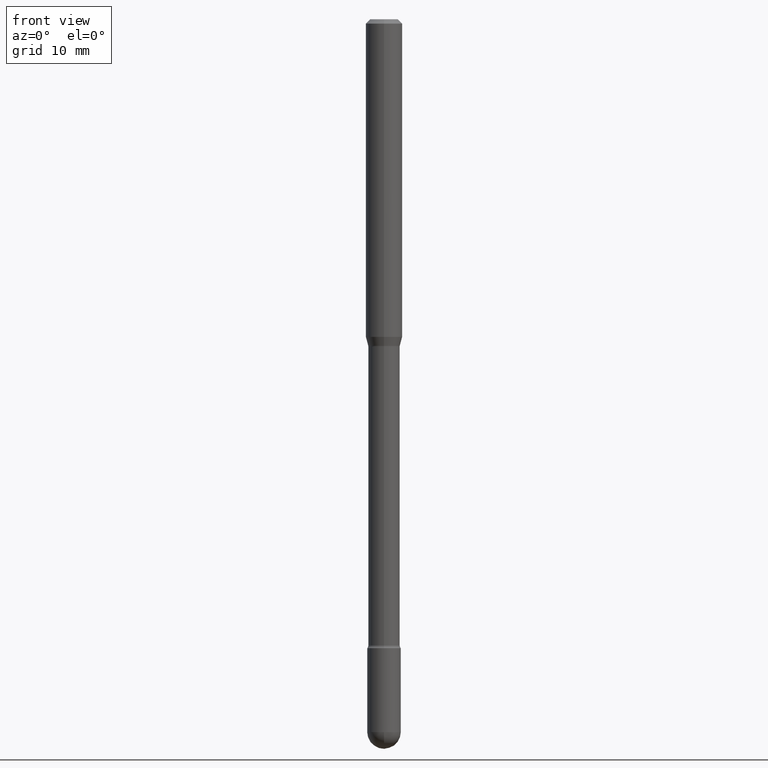
[diagram: clean part render]
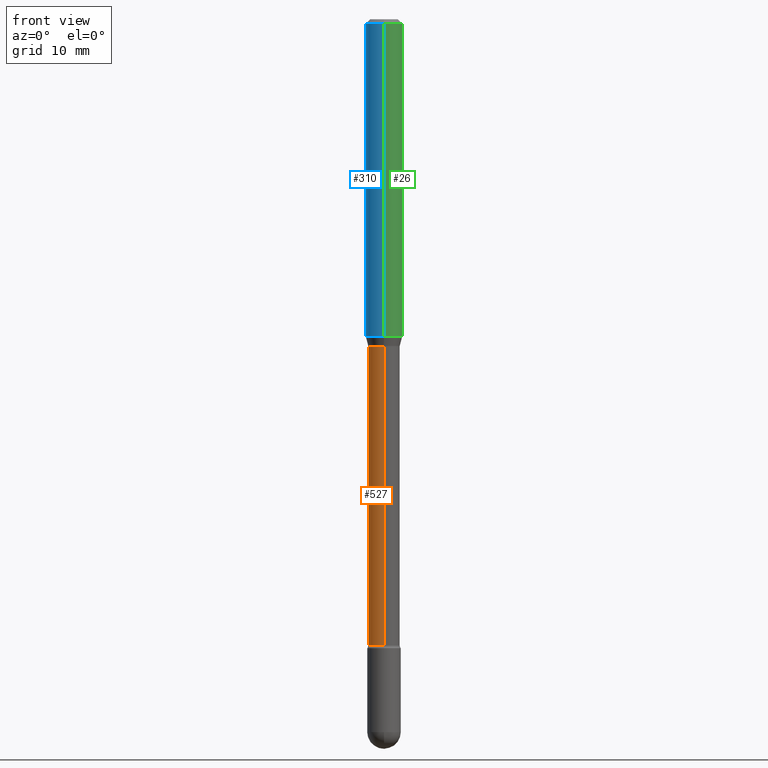
[diagram: same view with three faces highlighted in distinct colors, each labeled with its STEP entity id]
A machine part, front view with three faces highlighted in distinct colors.
Their STEP definitions:

[orange] entity #527 — the highlighted cylindrical surface (edge-blend (fillet) strip) has radius 1.3729 mm, axis along (-0, 0, 1).
#1 = DIRECTION ( 'NONE',  ( -6.982962677686265922E-15, -1.000000000000000000, 3.491380473157220392E-15 ) ) ;
#5 = DIRECTION ( 'NONE',  ( -2.445539240317163819E-29, 3.491380473157220392E-15, 1.000000000000000000 ) ) ;
#23 = DIRECTION ( 'NONE',  ( -6.982962677686265922E-15, -1.000000000000000000, 5.054297860618422477E-15 ) ) ;
#53 = LINE ( 'NONE', #128, #338 ) ;
#68 = VERTEX_POINT ( 'NONE', #430 ) ;
#91 = ORIENTED_EDGE ( 'NONE', *, *, #264, .T. ) ;
#94 = ORIENTED_EDGE ( 'NONE', *, *, #170, .F. ) ;
#105 = EDGE_CURVE ( 'NONE', #68, #498, #408, .T. ) ;
#128 = CARTESIAN_POINT ( 'NONE',  ( 3.840483486783346000E-16, 0.05405000000000007021, 2.893642843170980533E-16 ) ) ;
#129 = VECTOR ( 'NONE', #5, 39.37007874015748143 ) ;
#154 = CARTESIAN_POINT ( 'NONE',  ( -3.774291327288910583E-16, -0.05405000000000760585, -2.145429341715430205 ) ) ;
#159 = CARTESIAN_POINT ( 'NONE',  ( -3.774291327289153158E-16, -0.05405000000000392824, -1.121974787463811074 ) ) ;
#160 = LINE ( 'NONE', #309, #129 ) ;
#170 = EDGE_CURVE ( 'NONE', #528, #68, #53, .T. ) ;
#180 = AXIS2_PLACEMENT_3D ( 'NONE', #429, #303, #434 ) ;
#262 = VERTEX_POINT ( 'NONE', #154 ) ;
#264 = EDGE_CURVE ( 'NONE', #528, #262, #376, .T. ) ;
#284 = DIRECTION ( 'NONE',  ( -2.445539240317163819E-29, 3.491380473157220786E-15, 1.000000000000000000 ) ) ;
#303 = DIRECTION ( 'NONE',  ( -2.445539240317163819E-29, 3.491380473157220786E-15, 1.000000000000000000 ) ) ;
#309 = CARTESIAN_POINT ( 'NONE',  ( -3.774291327289431725E-16, -0.05405000000000007021, 6.667825134653940731E-16 ) ) ;
#314 = AXIS2_PLACEMENT_3D ( 'NONE', #495, #284, #23 ) ;
#335 = ORIENTED_EDGE ( 'NONE', *, *, #105, .F. ) ;
#338 = VECTOR ( 'NONE', #404, 39.37007874015748143 ) ;
#348 = CYLINDRICAL_SURFACE ( 'NONE', #517, 0.05405000000000007021 ) ;
#372 = EDGE_LOOP ( 'NONE', ( #94, #91, #549, #335 ) ) ;
#376 = CIRCLE ( 'NONE', #314, 0.05405000000000011878 ) ;
#390 = FACE_OUTER_BOUND ( 'NONE', #372, .T. ) ;
#404 = DIRECTION ( 'NONE',  ( -2.445539240317163819E-29, 3.491380473157220392E-15, 1.000000000000000000 ) ) ;
#408 = CIRCLE ( 'NONE', #180, 0.05405000000000000776 ) ;
#429 = CARTESIAN_POINT ( 'NONE',  ( 2.743833369389259815E-29, -3.917240864325872967E-15, -1.121974787463811074 ) ) ;
#430 = CARTESIAN_POINT ( 'NONE',  ( 3.840483486783871086E-16, 0.05404999999999610116, -1.121974787463811296 ) ) ;
#434 = DIRECTION ( 'NONE',  ( -6.982962677686265922E-15, -1.000000000000000000, 2.527148930309216366E-15 ) ) ;
#437 = CARTESIAN_POINT ( 'NONE',  ( -1.169113584055446105E-44, 1.669184350826100908E-30, 4.780733988912460139E-16 ) ) ;
#482 = CARTESIAN_POINT ( 'NONE',  ( 3.963052108702489167E-16, 0.05404999999999263172, -2.145429341715431093 ) ) ;
#495 = CARTESIAN_POINT ( 'NONE',  ( 5.246731642492907639E-29, -7.490510110203804866E-15, -2.145429341715430649 ) ) ;
#498 = VERTEX_POINT ( 'NONE', #159 ) ;
#509 = EDGE_CURVE ( 'NONE', #262, #498, #160, .T. ) ;
#517 = AXIS2_PLACEMENT_3D ( 'NONE', #437, #531, #1 ) ;
#527 = ADVANCED_FACE ( 'NONE', ( #390 ), #348, .T. ) ;
#528 = VERTEX_POINT ( 'NONE', #482 ) ;
#531 = DIRECTION ( 'NONE',  ( -2.445539240317163819E-29, 3.491380473157220786E-15, 1.000000000000000000 ) ) ;
#549 = ORIENTED_EDGE ( 'NONE', *, *, #509, .T. ) ;

[blue] entity #310 — the highlighted cylindrical surface (edge-blend (fillet) strip) has radius 1.5875 mm, axis along (-0, 0, 1).
#18 = ORIENTED_EDGE ( 'NONE', *, *, #551, .T. ) ;
#22 = ORIENTED_EDGE ( 'NONE', *, *, #244, .F. ) ;
#50 = ORIENTED_EDGE ( 'NONE', *, *, #236, .T. ) ;
#61 = ORIENTED_EDGE ( 'NONE', *, *, #363, .F. ) ;
#70 = VECTOR ( 'NONE', #515, 39.37007874015748143 ) ;
#84 = AXIS2_PLACEMENT_3D ( 'NONE', #323, #226, #187 ) ;
#115 = LINE ( 'NONE', #428, #70 ) ;
#135 = VERTEX_POINT ( 'NONE', #350 ) ;
#136 = DIRECTION ( 'NONE',  ( -6.982962677686265922E-15, -1.000000000000000000, 4.370956789862821150E-15 ) ) ;
#173 = DIRECTION ( 'NONE',  ( -2.445539240317163819E-29, 3.491380473157220786E-15, 1.000000000000000000 ) ) ;
#178 = VERTEX_POINT ( 'NONE', #260 ) ;
#179 = LINE ( 'NONE', #555, #281 ) ;
#187 = DIRECTION ( 'NONE',  ( -6.982962677686265922E-15, -1.000000000000000000, 3.483106191921935554E-15 ) ) ;
#188 = CIRCLE ( 'NONE', #84, 0.06250000000000000000 ) ;
#206 = CYLINDRICAL_SURFACE ( 'NONE', #341, 0.06250000000000000000 ) ;
#215 = CARTESIAN_POINT ( 'NONE',  ( 2.661881841067542894E-29, -3.800242551229606105E-15, -1.088464170676043397 ) ) ;
#226 = DIRECTION ( 'NONE',  ( -2.445539240317163819E-29, 3.491380473157220786E-15, 1.000000000000000000 ) ) ;
#236 = EDGE_CURVE ( 'NONE', #416, #135, #179, .T. ) ;
#244 = EDGE_CURVE ( 'NONE', #178, #135, #188, .T. ) ;
#260 = CARTESIAN_POINT ( 'NONE',  ( 4.440892098500893388E-16, 0.06249999999999993755, -0.01500000000000030129 ) ) ;
#281 = VECTOR ( 'NONE', #537, 39.37007874015748143 ) ;
#290 = EDGE_LOOP ( 'NONE', ( #61, #18, #50, #22 ) ) ;
#310 = ADVANCED_FACE ( 'NONE', ( #422 ), #206, .T. ) ;
#312 = VERTEX_POINT ( 'NONE', #511 ) ;
#323 = CARTESIAN_POINT ( 'NONE',  ( 3.668308860475765785E-31, -5.237070709735860540E-17, -0.01500000000000008271 ) ) ;
#340 = DIRECTION ( 'NONE',  ( -6.982962677686265922E-15, -1.000000000000000000, 3.491380473157219603E-15 ) ) ;
#341 = AXIS2_PLACEMENT_3D ( 'NONE', #385, #556, #340 ) ;
#350 = CARTESIAN_POINT ( 'NONE',  ( -4.364351673553912750E-16, -0.06250000000000005551, -0.01499999999999986587 ) ) ;
#363 = EDGE_CURVE ( 'NONE', #312, #178, #115, .T. ) ;
#381 = CIRCLE ( 'NONE', #438, 0.06250000000000000000 ) ;
#385 = CARTESIAN_POINT ( 'NONE',  ( -1.169113584055446105E-44, 1.669184350826100908E-30, 4.780733988912460139E-16 ) ) ;
#416 = VERTEX_POINT ( 'NONE', #468 ) ;
#422 = FACE_OUTER_BOUND ( 'NONE', #290, .T. ) ;
#428 = CARTESIAN_POINT ( 'NONE',  ( 4.440892098500625669E-16, 0.06250000000000000000, 2.598621193189197887E-16 ) ) ;
#438 = AXIS2_PLACEMENT_3D ( 'NONE', #215, #173, #136 ) ;
#468 = CARTESIAN_POINT ( 'NONE',  ( -4.364351673553650454E-16, -0.06250000000000381639, -1.088464170676042952 ) ) ;
#511 = CARTESIAN_POINT ( 'NONE',  ( 4.440892098500890430E-16, 0.06249999999999618361, -1.088464170676043619 ) ) ;
#515 = DIRECTION ( 'NONE',  ( -2.445539240317163819E-29, 3.491380473157220392E-15, 1.000000000000000000 ) ) ;
#537 = DIRECTION ( 'NONE',  ( -2.445539240317163819E-29, 3.491380473157220392E-15, 1.000000000000000000 ) ) ;
#551 = EDGE_CURVE ( 'NONE', #312, #416, #381, .T. ) ;
#555 = CARTESIAN_POINT ( 'NONE',  ( -4.364351673553916201E-16, -0.06250000000000000000, 6.962846784635722884E-16 ) ) ;
#556 = DIRECTION ( 'NONE',  ( -2.445539240317163819E-29, 3.491380473157220786E-15, 1.000000000000000000 ) ) ;

[green] entity #26 — the highlighted cylindrical surface (edge-blend (fillet) strip) has radius 1.5875 mm, axis along (-0, 0, 1).
#4 = EDGE_CURVE ( 'NONE', #135, #178, #79, .T. ) ;
#26 = ADVANCED_FACE ( 'NONE', ( #237 ), #30, .T. ) ;
#30 = CYLINDRICAL_SURFACE ( 'NONE', #478, 0.06250000000000000000 ) ;
#47 = CARTESIAN_POINT ( 'NONE',  ( 2.661881841067542894E-29, -3.800242551229606105E-15, -1.088464170676043397 ) ) ;
#70 = VECTOR ( 'NONE', #515, 39.37007874015748143 ) ;
#79 = CIRCLE ( 'NONE', #87, 0.06250000000000000000 ) ;
#87 = AXIS2_PLACEMENT_3D ( 'NONE', #503, #186, #364 ) ;
#100 = EDGE_LOOP ( 'NONE', ( #142, #420, #448, #283 ) ) ;
#115 = LINE ( 'NONE', #428, #70 ) ;
#119 = DIRECTION ( 'NONE',  ( -2.445539240317163819E-29, 3.491380473157220786E-15, 1.000000000000000000 ) ) ;
#135 = VERTEX_POINT ( 'NONE', #350 ) ;
#138 = AXIS2_PLACEMENT_3D ( 'NONE', #47, #442, #524 ) ;
#141 = EDGE_CURVE ( 'NONE', #416, #312, #193, .T. ) ;
#142 = ORIENTED_EDGE ( 'NONE', *, *, #141, .T. ) ;
#178 = VERTEX_POINT ( 'NONE', #260 ) ;
#179 = LINE ( 'NONE', #555, #281 ) ;
#186 = DIRECTION ( 'NONE',  ( -2.445539240317163819E-29, 3.491380473157220786E-15, 1.000000000000000000 ) ) ;
#193 = CIRCLE ( 'NONE', #138, 0.06250000000000000000 ) ;
#197 = CARTESIAN_POINT ( 'NONE',  ( -1.169113584055446105E-44, 1.669184350826100908E-30, 4.780733988912460139E-16 ) ) ;
#201 = DIRECTION ( 'NONE',  ( -6.982962677686265922E-15, -1.000000000000000000, 3.491380473157219603E-15 ) ) ;
#236 = EDGE_CURVE ( 'NONE', #416, #135, #179, .T. ) ;
#237 = FACE_OUTER_BOUND ( 'NONE', #100, .T. ) ;
#260 = CARTESIAN_POINT ( 'NONE',  ( 4.440892098500893388E-16, 0.06249999999999993755, -0.01500000000000030129 ) ) ;
#281 = VECTOR ( 'NONE', #537, 39.37007874015748143 ) ;
#283 = ORIENTED_EDGE ( 'NONE', *, *, #236, .F. ) ;
#312 = VERTEX_POINT ( 'NONE', #511 ) ;
#350 = CARTESIAN_POINT ( 'NONE',  ( -4.364351673553912750E-16, -0.06250000000000005551, -0.01499999999999986587 ) ) ;
#363 = EDGE_CURVE ( 'NONE', #312, #178, #115, .T. ) ;
#364 = DIRECTION ( 'NONE',  ( -6.982962677686265922E-15, -1.000000000000000000, 3.483106191921935554E-15 ) ) ;
#416 = VERTEX_POINT ( 'NONE', #468 ) ;
#420 = ORIENTED_EDGE ( 'NONE', *, *, #363, .T. ) ;
#428 = CARTESIAN_POINT ( 'NONE',  ( 4.440892098500625669E-16, 0.06250000000000000000, 2.598621193189197887E-16 ) ) ;
#442 = DIRECTION ( 'NONE',  ( -2.445539240317163819E-29, 3.491380473157220786E-15, 1.000000000000000000 ) ) ;
#448 = ORIENTED_EDGE ( 'NONE', *, *, #4, .F. ) ;
#468 = CARTESIAN_POINT ( 'NONE',  ( -4.364351673553650454E-16, -0.06250000000000381639, -1.088464170676042952 ) ) ;
#478 = AXIS2_PLACEMENT_3D ( 'NONE', #197, #119, #201 ) ;
#503 = CARTESIAN_POINT ( 'NONE',  ( 3.668308860475765785E-31, -5.237070709735860540E-17, -0.01500000000000008271 ) ) ;
#511 = CARTESIAN_POINT ( 'NONE',  ( 4.440892098500890430E-16, 0.06249999999999618361, -1.088464170676043619 ) ) ;
#515 = DIRECTION ( 'NONE',  ( -2.445539240317163819E-29, 3.491380473157220392E-15, 1.000000000000000000 ) ) ;
#524 = DIRECTION ( 'NONE',  ( -6.982962677686265922E-15, -1.000000000000000000, 4.370956789862821150E-15 ) ) ;
#537 = DIRECTION ( 'NONE',  ( -2.445539240317163819E-29, 3.491380473157220392E-15, 1.000000000000000000 ) ) ;
#555 = CARTESIAN_POINT ( 'NONE',  ( -4.364351673553916201E-16, -0.06250000000000000000, 6.962846784635722884E-16 ) ) ;